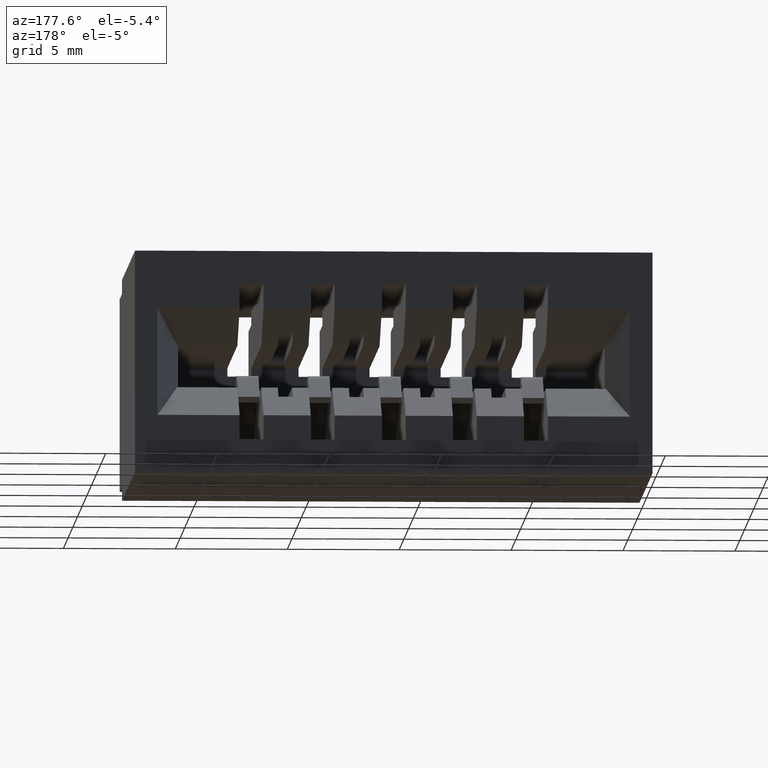
[diagram: clean part render]
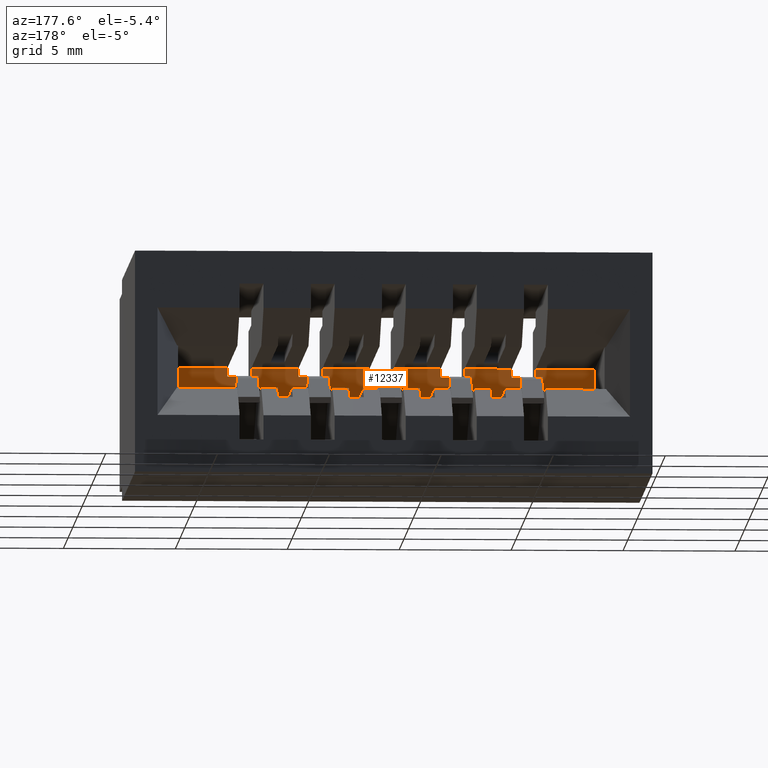
[diagram: same view with one face highlighted and labeled with its STEP entity id]
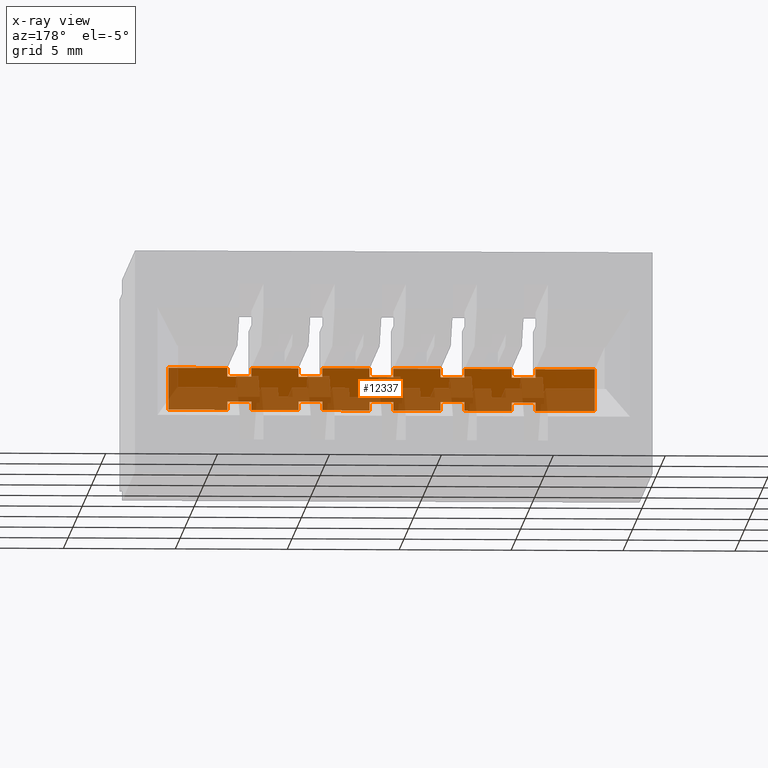
[diagram: x-ray of the same camera — body ghosted, the highlighted face saturated]
A machine part, auxiliary view. The second image highlights one B-rep face of the part: STEP entity #12337.
The next image is the same camera in x-ray: the body ghosted, the highlighted face saturated — about 61% of this face is hidden behind the body in this view.
In plain terms, the highlighted planar face has unit normal (0, -1, 0).
Its self-contained STEP definition (entity closure, byte-faithful):
#218 = CARTESIAN_POINT ( 'NONE',  ( 0.2259999999999996179, 0.1299999999999999212, -0.2320000000000000118 ) ) ;
#256 = DIRECTION ( 'NONE',  ( -1.000000000000000000, -0.0000000000000000000, -0.0000000000000000000 ) ) ;
#311 = VECTOR ( 'NONE', #1672, 39.37007874015748143 ) ;
#340 = DIRECTION ( 'NONE',  ( 1.000000000000000000, 0.0000000000000000000, -2.307304048702924629E-16 ) ) ;
#350 = CARTESIAN_POINT ( 'NONE',  ( 0.4759999999999995901, 0.1299999999999999212, -0.1580000000000000848 ) ) ;
#466 = EDGE_CURVE ( 'NONE', #9126, #5496, #10151, .T. ) ;
#478 = DIRECTION ( 'NONE',  ( 2.385081683068867604E-16, 0.0000000000000000000, 1.000000000000000000 ) ) ;
#524 = DIRECTION ( 'NONE',  ( 1.000000000000000000, 0.0000000000000000000, -2.307304048702924629E-16 ) ) ;
#558 = VECTOR ( 'NONE', #6745, 39.37007874015748143 ) ;
#578 = CARTESIAN_POINT ( 'NONE',  ( 0.07999999999999969635, 0.1299999999999999212, -0.2320000000000000118 ) ) ;
#590 = VERTEX_POINT ( 'NONE', #8747 ) ;
#649 = CARTESIAN_POINT ( 'NONE',  ( 0.3509999999999995901, 0.1299999999999999212, -0.2169999999999998597 ) ) ;
#656 = ORIENTED_EDGE ( 'NONE', *, *, #8857, .F. ) ;
#655 = VERTEX_POINT ( 'NONE', #1410 ) ;
#669 = EDGE_CURVE ( 'NONE', #3289, #2224, #2326, .T. ) ;
#682 = ORIENTED_EDGE ( 'NONE', *, *, #6708, .F. ) ;
#690 = VECTOR ( 'NONE', #11355, 39.37007874015748143 ) ;
#732 = VECTOR ( 'NONE', #11087, 39.37007874015748143 ) ;
#737 = DIRECTION ( 'NONE',  ( 1.000000000000000000, -0.0000000000000000000, -0.0000000000000000000 ) ) ;
#750 = VECTOR ( 'NONE', #737, 39.37007874015748143 ) ;
#795 = DIRECTION ( 'NONE',  ( 2.385081683068867604E-16, 0.0000000000000000000, 1.000000000000000000 ) ) ;
#821 = VECTOR ( 'NONE', #11746, 39.37007874015748143 ) ;
#892 = CARTESIAN_POINT ( 'NONE',  ( 0.2259999999999996456, 0.1299999999999999212, -0.1580000000000000016 ) ) ;
#900 = CARTESIAN_POINT ( 'NONE',  ( 0.07999999999999969635, 0.1299999999999999212, -0.2320000000000000118 ) ) ;
#948 = DIRECTION ( 'NONE',  ( 1.000000000000000000, 0.0000000000000000000, -2.307304048702924629E-16 ) ) ;
#974 = CARTESIAN_POINT ( 'NONE',  ( -19685.03937007874265, 0.1299999999999999212, -0.1729999999954578704 ) ) ;
#995 = CARTESIAN_POINT ( 'NONE',  ( 0.6009999999999996456, 0.1299999999999999212, -0.1580000000000000016 ) ) ;
#999 = VERTEX_POINT ( 'NONE', #11892 ) ;
#1008 = LINE ( 'NONE', #3873, #7876 ) ;
#1098 = DIRECTION ( 'NONE',  ( -1.000000000000000000, -0.0000000000000000000, -0.0000000000000000000 ) ) ;
#1101 = ORIENTED_EDGE ( 'NONE', *, *, #5701, .T. ) ;
#1108 = VECTOR ( 'NONE', #8491, 39.37007874015748143 ) ;
#1167 = VERTEX_POINT ( 'NONE', #7502 ) ;
#1225 = VERTEX_POINT ( 'NONE', #2504 ) ;
#1276 = VERTEX_POINT ( 'NONE', #8468 ) ;
#1295 = EDGE_CURVE ( 'NONE', #8903, #5496, #9813, .T. ) ;
#1354 = VECTOR ( 'NONE', #6376, 39.37007874015748143 ) ;
#1366 = CARTESIAN_POINT ( 'NONE',  ( 0.07999999999999969635, 0.1299999999999999212, -0.2320000000000000118 ) ) ;
#1387 = VERTEX_POINT ( 'NONE', #7166 ) ;
#1410 = CARTESIAN_POINT ( 'NONE',  ( 0.7259999999999997566, 0.1299999999999999212, -0.2320000000000000118 ) ) ;
#1426 = VECTOR ( 'NONE', #3009, 39.37007874015748143 ) ;
#1456 = VECTOR ( 'NONE', #5358, 39.37007874015748143 ) ;
#1484 = EDGE_CURVE ( 'NONE', #7288, #5672, #10137, .T. ) ;
#1587 = CARTESIAN_POINT ( 'NONE',  ( 0.4759999999999995901, 0.1299999999999999212, -0.1580000000000000848 ) ) ;
#1647 = ORIENTED_EDGE ( 'NONE', *, *, #466, .T. ) ;
#1655 = CARTESIAN_POINT ( 'NONE',  ( 0.8299999999999996270, 0.1299999999999999212, -0.1580000000000000016 ) ) ;
#1672 = DIRECTION ( 'NONE',  ( 1.000000000000000000, 0.0000000000000000000, -2.307304048702924629E-16 ) ) ;
#1703 = CARTESIAN_POINT ( 'NONE',  ( 0.8299999999999996270, 0.1299999999999999212, -0.1580000000000000016 ) ) ;
#1709 = ORIENTED_EDGE ( 'NONE', *, *, #9819, .T. ) ;
#1818 = VERTEX_POINT ( 'NONE', #5974 ) ;
#2037 = LINE ( 'NONE', #8975, #8885 ) ;
#2095 = ORIENTED_EDGE ( 'NONE', *, *, #11348, .T. ) ;
#2192 = ORIENTED_EDGE ( 'NONE', *, *, #3627, .F. ) ;
#2224 = VERTEX_POINT ( 'NONE', #6158 ) ;
#2236 = VERTEX_POINT ( 'NONE', #4210 ) ;
#2239 = CARTESIAN_POINT ( 'NONE',  ( 0.3089999999999996083, 0.1299999999999999212, -0.1580000000000000571 ) ) ;
#2293 = VERTEX_POINT ( 'NONE', #10173 ) ;
#2302 = CARTESIAN_POINT ( 'NONE',  ( 0.5589999999999996083, 0.1299999999999999212, -0.1729999999999995708 ) ) ;
#2310 = DIRECTION ( 'NONE',  ( 1.000000000000000000, -0.0000000000000000000, -0.0000000000000000000 ) ) ;
#2326 = LINE ( 'NONE', #974, #12406 ) ;
#2343 = VECTOR ( 'NONE', #2898, 39.37007874015748143 ) ;
#2357 = CARTESIAN_POINT ( 'NONE',  ( 0.07999999999999969635, 0.1299999999999999212, -0.1580000000000000016 ) ) ;
#2372 = DIRECTION ( 'NONE',  ( 2.385081683068867604E-16, 0.0000000000000000000, 1.000000000000000000 ) ) ;
#2374 = LINE ( 'NONE', #3284, #12465 ) ;
#2377 = VECTOR ( 'NONE', #7117, 39.37007874015748143 ) ;
#2442 = CARTESIAN_POINT ( 'NONE',  ( 0.1839999999999996638, 0.1299999999999999212, -0.1580000000000000293 ) ) ;
#2473 = LINE ( 'NONE', #1366, #3519 ) ;
#2480 = EDGE_CURVE ( 'NONE', #1225, #8413, #2037, .T. ) ;
#2504 = CARTESIAN_POINT ( 'NONE',  ( 0.5589999999999996083, 0.1299999999999999212, -0.2320000000000000118 ) ) ;
#2553 = CARTESIAN_POINT ( 'NONE',  ( 0.6839999999999996083, 0.1299999999999999212, -0.2169999999999998597 ) ) ;
#2574 = ORIENTED_EDGE ( 'NONE', *, *, #4730, .T. ) ;
#2600 = DIRECTION ( 'NONE',  ( 0.0000000000000000000, -1.000000000000000000, -0.0000000000000000000 ) ) ;
#2615 = EDGE_CURVE ( 'NONE', #7463, #6164, #7492, .T. ) ;
#2628 = LINE ( 'NONE', #1587, #10432 ) ;
#2744 = LINE ( 'NONE', #6766, #8066 ) ;
#2768 = LINE ( 'NONE', #11642, #311 ) ;
#2800 = LINE ( 'NONE', #1703, #10286 ) ;
#2878 = CARTESIAN_POINT ( 'NONE',  ( 0.3089999999999996083, 0.1299999999999999212, -0.1580000000000000571 ) ) ;
#2898 = DIRECTION ( 'NONE',  ( 2.385081683068867604E-16, 0.0000000000000000000, 1.000000000000000000 ) ) ;
#2936 = DIRECTION ( 'NONE',  ( 2.385081683068867604E-16, 0.0000000000000000000, 1.000000000000000000 ) ) ;
#2952 = ORIENTED_EDGE ( 'NONE', *, *, #669, .T. ) ;
#3009 = DIRECTION ( 'NONE',  ( 2.385081683068867604E-16, 0.0000000000000000000, 1.000000000000000000 ) ) ;
#3029 = VECTOR ( 'NONE', #10003, 39.37007874015748143 ) ;
#3095 = VECTOR ( 'NONE', #3448, 39.37007874015748143 ) ;
#3226 = EDGE_CURVE ( 'NONE', #1167, #11414, #7003, .T. ) ;
#3250 = VECTOR ( 'NONE', #10893, 39.37007874015748143 ) ;
#3270 = CARTESIAN_POINT ( 'NONE',  ( 0.5589999999999997193, 0.1299999999999999212, -0.1580000000000000016 ) ) ;
#3277 = ORIENTED_EDGE ( 'NONE', *, *, #1484, .T. ) ;
#3284 = CARTESIAN_POINT ( 'NONE',  ( -19685.03937007874265, 0.1299999999999999212, -0.1729999999954578427 ) ) ;
#3289 = VERTEX_POINT ( 'NONE', #10431 ) ;
#3359 = EDGE_CURVE ( 'NONE', #2293, #4426, #7524, .T. ) ;
#3377 = DIRECTION ( 'NONE',  ( -1.000000000000000000, -0.0000000000000000000, -0.0000000000000000000 ) ) ;
#3391 = ORIENTED_EDGE ( 'NONE', *, *, #2480, .F. ) ;
#3421 = VERTEX_POINT ( 'NONE', #5821 ) ;
#3448 = DIRECTION ( 'NONE',  ( 1.000000000000000000, 0.0000000000000000000, -2.307304048702924629E-16 ) ) ;
#3451 = LINE ( 'NONE', #6437, #7865 ) ;
#3472 = LINE ( 'NONE', #2239, #7874 ) ;
#3512 = DIRECTION ( 'NONE',  ( 2.385081683068867604E-16, 0.0000000000000000000, 1.000000000000000000 ) ) ;
#3519 = VECTOR ( 'NONE', #4356, 39.37007874015748143 ) ;
#3557 = CARTESIAN_POINT ( 'NONE',  ( 0.5589999999999996083, 0.1299999999999999212, -0.1580000000000000848 ) ) ;
#3627 = EDGE_CURVE ( 'NONE', #12042, #2236, #10925, .T. ) ;
#3670 = CARTESIAN_POINT ( 'NONE',  ( 0.1839999999999997193, 0.1299999999999999212, -0.1580000000000000016 ) ) ;
#3790 = LINE ( 'NONE', #1655, #750 ) ;
#3809 = CARTESIAN_POINT ( 'NONE',  ( 0.6009999999999996456, 0.1299999999999999212, -0.2169999999999998597 ) ) ;
#3816 = VERTEX_POINT ( 'NONE', #3670 ) ;
#3832 = ORIENTED_EDGE ( 'NONE', *, *, #7811, .F. ) ;
#3867 = DIRECTION ( 'NONE',  ( 1.000000000000000000, 0.0000000000000000000, -2.307304048702924629E-16 ) ) ;
#3873 = CARTESIAN_POINT ( 'NONE',  ( 0.3509999999999995901, 0.1299999999999999212, -0.1580000000000000571 ) ) ;
#3923 = VECTOR ( 'NONE', #6195, 39.37007874015748143 ) ;
#3960 = VERTEX_POINT ( 'NONE', #995 ) ;
#3978 = CARTESIAN_POINT ( 'NONE',  ( 0.3089999999999996083, 0.1299999999999999212, -0.1729999999999995708 ) ) ;
#3981 = DIRECTION ( 'NONE',  ( 2.385081683068867604E-16, 0.0000000000000000000, 1.000000000000000000 ) ) ;
#3986 = CARTESIAN_POINT ( 'NONE',  ( 0.8299999999999996270, 0.1299999999999999212, -0.2320000000000000118 ) ) ;
#4002 = CARTESIAN_POINT ( 'NONE',  ( -19685.03937007874265, 0.1299999999999999212, -0.2169999999954578818 ) ) ;
#4024 = VERTEX_POINT ( 'NONE', #3986 ) ;
#4029 = VECTOR ( 'NONE', #3512, 39.37007874015748143 ) ;
#4108 = EDGE_CURVE ( 'NONE', #9319, #6372, #12073, .T. ) ;
#4162 = CARTESIAN_POINT ( 'NONE',  ( 0.2259999999999996456, 0.1299999999999999212, -0.1580000000000000293 ) ) ;
#4210 = CARTESIAN_POINT ( 'NONE',  ( 0.2259999999999996456, 0.1299999999999999212, -0.2169999999999997486 ) ) ;
#4263 = ORIENTED_EDGE ( 'NONE', *, *, #8545, .F. ) ;
#4285 = CARTESIAN_POINT ( 'NONE',  ( 0.3509999999999995901, 0.1299999999999999212, -0.2320000000000000118 ) ) ;
#4299 = LINE ( 'NONE', #11160, #1354 ) ;
#4356 = DIRECTION ( 'NONE',  ( -1.000000000000000000, -0.0000000000000000000, -0.0000000000000000000 ) ) ;
#4422 = LINE ( 'NONE', #8378, #3095 ) ;
#4426 = VERTEX_POINT ( 'NONE', #9766 ) ;
#4498 = LINE ( 'NONE', #12622, #12201 ) ;
#4500 = LINE ( 'NONE', #2357, #8419 ) ;
#4628 = CARTESIAN_POINT ( 'NONE',  ( 0.4759999999999995901, 0.1299999999999999212, -0.1729999999999995708 ) ) ;
#4685 = ORIENTED_EDGE ( 'NONE', *, *, #11485, .T. ) ;
#4730 = EDGE_CURVE ( 'NONE', #1387, #5292, #2628, .T. ) ;
#4765 = LINE ( 'NONE', #7883, #11661 ) ;
#4796 = CARTESIAN_POINT ( 'NONE',  ( 0.6839999999999997193, 0.1299999999999999212, -0.1580000000000000016 ) ) ;
#4797 = DIRECTION ( 'NONE',  ( 2.385081683068867604E-16, 0.0000000000000000000, 1.000000000000000000 ) ) ;
#4822 = CARTESIAN_POINT ( 'NONE',  ( -19685.03937007874265, 0.1299999999999999212, -0.2169999999954577707 ) ) ;
#4861 = EDGE_CURVE ( 'NONE', #12723, #5643, #4765, .T. ) ;
#4900 = ORIENTED_EDGE ( 'NONE', *, *, #12469, .F. ) ;
#4912 = VECTOR ( 'NONE', #3377, 39.37007874015748143 ) ;
#5176 = ORIENTED_EDGE ( 'NONE', *, *, #10910, .T. ) ;
#5197 = LINE ( 'NONE', #9143, #9669 ) ;
#5200 = LINE ( 'NONE', #4162, #732 ) ;
#5256 = ORIENTED_EDGE ( 'NONE', *, *, #9146, .F. ) ;
#5292 = VERTEX_POINT ( 'NONE', #8171 ) ;
#5358 = DIRECTION ( 'NONE',  ( 2.385081683068867604E-16, 0.0000000000000000000, 1.000000000000000000 ) ) ;
#5379 = VECTOR ( 'NONE', #3867, 39.37007874015748143 ) ;
#5496 = VERTEX_POINT ( 'NONE', #9454 ) ;
#5501 = DIRECTION ( 'NONE',  ( 2.385081683068867604E-16, 0.0000000000000000000, 1.000000000000000000 ) ) ;
#5518 = PLANE ( 'NONE',  #6156 ) ;
#5622 = VERTEX_POINT ( 'NONE', #7839 ) ;
#5643 = VERTEX_POINT ( 'NONE', #3809 ) ;
#5659 = ORIENTED_EDGE ( 'NONE', *, *, #3226, .T. ) ;
#5670 = EDGE_CURVE ( 'NONE', #655, #10981, #6985, .T. ) ;
#5672 = VERTEX_POINT ( 'NONE', #8026 ) ;
#5701 = EDGE_CURVE ( 'NONE', #8903, #9335, #2374, .T. ) ;
#5821 = CARTESIAN_POINT ( 'NONE',  ( 0.4339999999999996083, 0.1299999999999999212, -0.1729999999999995708 ) ) ;
#5903 = ORIENTED_EDGE ( 'NONE', *, *, #11011, .F. ) ;
#5962 = CARTESIAN_POINT ( 'NONE',  ( 0.07999999999999969635, 0.1299999999999999212, -0.2320000000000000118 ) ) ;
#5974 = CARTESIAN_POINT ( 'NONE',  ( 0.8299999999999996270, 0.1299999999999999212, -0.1580000000000000016 ) ) ;
#6075 = LINE ( 'NONE', #10924, #11983 ) ;
#6108 = EDGE_CURVE ( 'NONE', #11127, #12490, #10663, .T. ) ;
#6156 = AXIS2_PLACEMENT_3D ( 'NONE', #9402, #2600, #8499 ) ;
#6158 = CARTESIAN_POINT ( 'NONE',  ( 0.2259999999999996456, 0.1299999999999999212, -0.1729999999999998483 ) ) ;
#6164 = VERTEX_POINT ( 'NONE', #3270 ) ;
#6195 = DIRECTION ( 'NONE',  ( 1.000000000000000000, -0.0000000000000000000, -0.0000000000000000000 ) ) ;
#6282 = DIRECTION ( 'NONE',  ( 1.000000000000000000, 0.0000000000000000000, -2.307304048702924629E-16 ) ) ;
#6316 = DIRECTION ( 'NONE',  ( -0.0000000000000000000, -0.0000000000000000000, 1.000000000000000000 ) ) ;
#6352 = CARTESIAN_POINT ( 'NONE',  ( 0.7259999999999997566, 0.1299999999999999212, -0.1580000000000001681 ) ) ;
#6372 = VERTEX_POINT ( 'NONE', #2553 ) ;
#6376 = DIRECTION ( 'NONE',  ( 1.000000000000000000, -0.0000000000000000000, -0.0000000000000000000 ) ) ;
#6380 = CARTESIAN_POINT ( 'NONE',  ( 0.8299999999999996270, 0.1299999999999999212, -0.1580000000000000016 ) ) ;
#6392 = LINE ( 'NONE', #12334, #11297 ) ;
#6398 = ORIENTED_EDGE ( 'NONE', *, *, #2615, .T. ) ;
#6437 = CARTESIAN_POINT ( 'NONE',  ( -19685.03937007874265, 0.1299999999999999212, -0.2169999999954578263 ) ) ;
#6630 = EDGE_CURVE ( 'NONE', #1225, #1387, #2473, .T. ) ;
#6708 = EDGE_CURVE ( 'NONE', #8413, #5643, #4422, .T. ) ;
#6745 = DIRECTION ( 'NONE',  ( 2.385081683068867604E-16, 0.0000000000000000000, 1.000000000000000000 ) ) ;
#6762 = DIRECTION ( 'NONE',  ( 0.0000000000000000000, 0.0000000000000000000, -1.000000000000000000 ) ) ;
#6766 = CARTESIAN_POINT ( 'NONE',  ( 0.3509999999999995901, 0.1299999999999999212, -0.1580000000000000571 ) ) ;
#6855 = EDGE_CURVE ( 'NONE', #10671, #7782, #1008, .T. ) ;
#6878 = EDGE_CURVE ( 'NONE', #3421, #7512, #6075, .T. ) ;
#6918 = LINE ( 'NONE', #9053, #5379 ) ;
#6974 = EDGE_CURVE ( 'NONE', #3289, #3816, #7376, .T. ) ;
#6985 = LINE ( 'NONE', #7774, #2343 ) ;
#6999 = CARTESIAN_POINT ( 'NONE',  ( 0.7259999999999997566, 0.1299999999999999212, -0.2169999999999998597 ) ) ;
#7003 = LINE ( 'NONE', #5962, #7328 ) ;
#7040 = DIRECTION ( 'NONE',  ( 2.385081683068867604E-16, 0.0000000000000000000, 1.000000000000000000 ) ) ;
#7117 = DIRECTION ( 'NONE',  ( 2.385081683068867604E-16, 0.0000000000000000000, 1.000000000000000000 ) ) ;
#7124 = EDGE_CURVE ( 'NONE', #11414, #2236, #10849, .T. ) ;
#7129 = ORIENTED_EDGE ( 'NONE', *, *, #12672, .F. ) ;
#7166 = CARTESIAN_POINT ( 'NONE',  ( 0.4759999999999995901, 0.1299999999999999212, -0.2320000000000000118 ) ) ;
#7173 = CARTESIAN_POINT ( 'NONE',  ( 0.6839999999999996083, 0.1299999999999999212, -0.1580000000000001403 ) ) ;
#7176 = CARTESIAN_POINT ( 'NONE',  ( 0.8299999999999996270, 0.1299999999999999212, -0.1580000000000000016 ) ) ;
#7266 = VECTOR ( 'NONE', #3981, 39.37007874015748143 ) ;
#7288 = VERTEX_POINT ( 'NONE', #2302 ) ;
#7305 = CARTESIAN_POINT ( 'NONE',  ( 0.6839999999999996083, 0.1299999999999999212, -0.1729999999999995708 ) ) ;
#7328 = VECTOR ( 'NONE', #1098, 39.37007874015748143 ) ;
#7376 = LINE ( 'NONE', #2442, #1456 ) ;
#7453 = CARTESIAN_POINT ( 'NONE',  ( 0.3089999999999996083, 0.1299999999999999212, -0.2169999999999998597 ) ) ;
#7463 = VERTEX_POINT ( 'NONE', #8521 ) ;
#7469 = ORIENTED_EDGE ( 'NONE', *, *, #10575, .T. ) ;
#7492 = LINE ( 'NONE', #6380, #690 ) ;
#7502 = CARTESIAN_POINT ( 'NONE',  ( 0.3089999999999996083, 0.1299999999999999212, -0.2320000000000000118 ) ) ;
#7512 = VERTEX_POINT ( 'NONE', #4628 ) ;
#7524 = LINE ( 'NONE', #6352, #1108 ) ;
#7671 = EDGE_CURVE ( 'NONE', #9335, #9349, #2744, .T. ) ;
#7722 = CARTESIAN_POINT ( 'NONE',  ( 0.4339999999999996083, 0.1299999999999999212, -0.1580000000000000571 ) ) ;
#7762 = ORIENTED_EDGE ( 'NONE', *, *, #1295, .F. ) ;
#7774 = CARTESIAN_POINT ( 'NONE',  ( 0.7259999999999997566, 0.1299999999999999212, -0.1580000000000001681 ) ) ;
#7782 = VERTEX_POINT ( 'NONE', #649 ) ;
#7811 = EDGE_CURVE ( 'NONE', #12125, #5292, #3451, .T. ) ;
#7839 = CARTESIAN_POINT ( 'NONE',  ( 0.4339999999999996083, 0.1299999999999999212, -0.1580000000000000016 ) ) ;
#7865 = VECTOR ( 'NONE', #524, 39.37007874015748143 ) ;
#7874 = VECTOR ( 'NONE', #478, 39.37007874015748143 ) ;
#7876 = VECTOR ( 'NONE', #9833, 39.37007874015748143 ) ;
#7883 = CARTESIAN_POINT ( 'NONE',  ( 0.6009999999999996456, 0.1299999999999999212, -0.1580000000000001403 ) ) ;
#7897 = CARTESIAN_POINT ( 'NONE',  ( 0.5589999999999996083, 0.1299999999999999212, -0.2169999999999998597 ) ) ;
#7932 = CARTESIAN_POINT ( 'NONE',  ( 0.07999999999999969635, 0.1299999999999999212, -0.2320000000000000118 ) ) ;
#7946 = CARTESIAN_POINT ( 'NONE',  ( 0.2259999999999996456, 0.1299999999999999212, -0.1580000000000000293 ) ) ;
#7950 = VERTEX_POINT ( 'NONE', #900 ) ;
#8026 = CARTESIAN_POINT ( 'NONE',  ( 0.6009999999999996456, 0.1299999999999999212, -0.1729999999999995708 ) ) ;
#8047 = ORIENTED_EDGE ( 'NONE', *, *, #6855, .T. ) ;
#8066 = VECTOR ( 'NONE', #2936, 39.37007874015748143 ) ;
#8171 = CARTESIAN_POINT ( 'NONE',  ( 0.4759999999999995901, 0.1299999999999999212, -0.2169999999999998597 ) ) ;
#8212 = ORIENTED_EDGE ( 'NONE', *, *, #4861, .T. ) ;
#8220 = DIRECTION ( 'NONE',  ( 1.000000000000000000, 0.0000000000000000000, -2.307304048702924629E-16 ) ) ;
#8304 = ORIENTED_EDGE ( 'NONE', *, *, #9888, .T. ) ;
#8378 = CARTESIAN_POINT ( 'NONE',  ( -19685.03937007874265, 0.1299999999999999212, -0.2169999999954577985 ) ) ;
#8397 = EDGE_CURVE ( 'NONE', #11127, #2293, #6918, .T. ) ;
#8404 = LINE ( 'NONE', #350, #11267 ) ;
#8413 = VERTEX_POINT ( 'NONE', #7897 ) ;
#8419 = VECTOR ( 'NONE', #6316, 39.37007874015748143 ) ;
#8446 = ORIENTED_EDGE ( 'NONE', *, *, #6108, .F. ) ;
#8468 = CARTESIAN_POINT ( 'NONE',  ( 0.07999999999999969635, 0.1299999999999999212, -0.1580000000000000016 ) ) ;
#8491 = DIRECTION ( 'NONE',  ( 2.385081683068867604E-16, 0.0000000000000000000, 1.000000000000000000 ) ) ;
#8499 = DIRECTION ( 'NONE',  ( 0.0000000000000000000, 0.0000000000000000000, -1.000000000000000000 ) ) ;
#8521 = CARTESIAN_POINT ( 'NONE',  ( 0.4759999999999995901, 0.1299999999999999212, -0.1580000000000000016 ) ) ;
#8537 = ORIENTED_EDGE ( 'NONE', *, *, #3359, .T. ) ;
#8545 = EDGE_CURVE ( 'NONE', #1167, #12677, #3472, .T. ) ;
#8603 = ORIENTED_EDGE ( 'NONE', *, *, #7124, .T. ) ;
#8747 = CARTESIAN_POINT ( 'NONE',  ( 0.4339999999999996083, 0.1299999999999999212, -0.2320000000000000118 ) ) ;
#8805 = DIRECTION ( 'NONE',  ( 1.000000000000000000, 0.0000000000000000000, -2.307304048702924629E-16 ) ) ;
#8820 = VECTOR ( 'NONE', #9720, 39.37007874015748143 ) ;
#8857 = EDGE_CURVE ( 'NONE', #6372, #10981, #10842, .T. ) ;
#8885 = VECTOR ( 'NONE', #11458, 39.37007874015748143 ) ;
#8903 = VERTEX_POINT ( 'NONE', #3978 ) ;
#8942 = CARTESIAN_POINT ( 'NONE',  ( 0.3509999999999995901, 0.1299999999999999212, -0.1580000000000000016 ) ) ;
#8954 = CARTESIAN_POINT ( 'NONE',  ( 0.4339999999999996083, 0.1299999999999999212, -0.2169999999999998597 ) ) ;
#8975 = CARTESIAN_POINT ( 'NONE',  ( 0.5589999999999996083, 0.1299999999999999212, -0.1580000000000000848 ) ) ;
#8999 = ORIENTED_EDGE ( 'NONE', *, *, #4108, .F. ) ;
#9053 = CARTESIAN_POINT ( 'NONE',  ( -19685.03937007874265, 0.1299999999999999212, -0.1729999999954577317 ) ) ;
#9055 = LINE ( 'NONE', #10019, #2377 ) ;
#9126 = VERTEX_POINT ( 'NONE', #892 ) ;
#9143 = CARTESIAN_POINT ( 'NONE',  ( 0.07999999999999969635, 0.1299999999999999212, -0.2320000000000000118 ) ) ;
#9146 = EDGE_CURVE ( 'NONE', #999, #12042, #4498, .T. ) ;
#9250 = ORIENTED_EDGE ( 'NONE', *, *, #11190, .T. ) ;
#9319 = VERTEX_POINT ( 'NONE', #12810 ) ;
#9324 = CARTESIAN_POINT ( 'NONE',  ( 0.6009999999999996456, 0.1299999999999999212, -0.2320000000000000118 ) ) ;
#9331 = VECTOR ( 'NONE', #7040, 39.37007874015748143 ) ;
#9335 = VERTEX_POINT ( 'NONE', #10875 ) ;
#9349 = VERTEX_POINT ( 'NONE', #8942 ) ;
#9401 = ORIENTED_EDGE ( 'NONE', *, *, #11719, .T. ) ;
#9402 = CARTESIAN_POINT ( 'NONE',  ( 0.07999999999999969635, 0.1299999999999999212, -0.1580000000000000016 ) ) ;
#9454 = CARTESIAN_POINT ( 'NONE',  ( 0.3089999999999996083, 0.1299999999999999212, -0.1580000000000000016 ) ) ;
#9465 = LINE ( 'NONE', #578, #4912 ) ;
#9538 = EDGE_CURVE ( 'NONE', #12677, #7782, #2768, .T. ) ;
#9603 = ORIENTED_EDGE ( 'NONE', *, *, #12236, .T. ) ;
#9669 = VECTOR ( 'NONE', #256, 39.37007874015748143 ) ;
#9720 = DIRECTION ( 'NONE',  ( 1.000000000000000000, -0.0000000000000000000, -0.0000000000000000000 ) ) ;
#9747 = EDGE_CURVE ( 'NONE', #5672, #3960, #9055, .T. ) ;
#9766 = CARTESIAN_POINT ( 'NONE',  ( 0.7259999999999997566, 0.1299999999999999212, -0.1580000000000000016 ) ) ;
#9782 = LINE ( 'NONE', #11847, #8820 ) ;
#9813 = LINE ( 'NONE', #2878, #7266 ) ;
#9819 = EDGE_CURVE ( 'NONE', #7512, #7463, #8404, .T. ) ;
#9833 = DIRECTION ( 'NONE',  ( 2.385081683068867604E-16, 0.0000000000000000000, 1.000000000000000000 ) ) ;
#9850 = ORIENTED_EDGE ( 'NONE', *, *, #11684, .T. ) ;
#9876 = LINE ( 'NONE', #9940, #3029 ) ;
#9888 = EDGE_CURVE ( 'NONE', #9349, #5622, #11238, .T. ) ;
#9910 = ORIENTED_EDGE ( 'NONE', *, *, #8397, .T. ) ;
#9940 = CARTESIAN_POINT ( 'NONE',  ( 0.07999999999999969635, 0.1299999999999999212, -0.2320000000000000118 ) ) ;
#10003 = DIRECTION ( 'NONE',  ( -1.000000000000000000, -0.0000000000000000000, -0.0000000000000000000 ) ) ;
#10019 = CARTESIAN_POINT ( 'NONE',  ( 0.6009999999999996456, 0.1299999999999999212, -0.1580000000000001403 ) ) ;
#10030 = ORIENTED_EDGE ( 'NONE', *, *, #6974, .F. ) ;
#10137 = LINE ( 'NONE', #10908, #10969 ) ;
#10151 = LINE ( 'NONE', #7176, #3923 ) ;
#10173 = CARTESIAN_POINT ( 'NONE',  ( 0.7259999999999997566, 0.1299999999999999212, -0.1729999999999995708 ) ) ;
#10240 = VECTOR ( 'NONE', #2310, 39.37007874015748143 ) ;
#10244 = EDGE_CURVE ( 'NONE', #1276, #3816, #4299, .T. ) ;
#10286 = VECTOR ( 'NONE', #6762, 39.37007874015748143 ) ;
#10431 = CARTESIAN_POINT ( 'NONE',  ( 0.1839999999995913238, 0.1299999999999999212, -0.1729999999999998483 ) ) ;
#10432 = VECTOR ( 'NONE', #10532, 39.37007874015748143 ) ;
#10532 = DIRECTION ( 'NONE',  ( 2.385081683068867604E-16, 0.0000000000000000000, 1.000000000000000000 ) ) ;
#10575 = EDGE_CURVE ( 'NONE', #2224, #9126, #5200, .T. ) ;
#10637 = EDGE_LOOP ( 'NONE', ( #9401, #11666, #656, #8999, #2095, #8212, #682, #3391, #12616, #2574, #3832, #4900, #9603, #8047, #12694, #4263, #5659, #8603, #2192, #5256, #11796, #4685, #11524, #10030, #2952, #7469, #1647, #7762, #1101, #10916, #8304, #5903, #12787, #1709, #6398, #7129, #3277, #11081, #5176, #8446, #9910, #8537, #9250, #9850 ) ) ;
#10642 = CARTESIAN_POINT ( 'NONE',  ( 0.1839999999995913238, 0.1299999999999999212, -0.2169999999999998597 ) ) ;
#10663 = LINE ( 'NONE', #10785, #1426 ) ;
#10671 = VERTEX_POINT ( 'NONE', #4285 ) ;
#10785 = CARTESIAN_POINT ( 'NONE',  ( 0.6839999999999996083, 0.1299999999999999212, -0.1580000000000001403 ) ) ;
#10842 = LINE ( 'NONE', #4822, #821 ) ;
#10849 = LINE ( 'NONE', #7946, #9331 ) ;
#10875 = CARTESIAN_POINT ( 'NONE',  ( 0.3509999999999995901, 0.1299999999999999212, -0.1729999999999995708 ) ) ;
#10893 = DIRECTION ( 'NONE',  ( -1.000000000000000000, -0.0000000000000000000, -0.0000000000000000000 ) ) ;
#10908 = CARTESIAN_POINT ( 'NONE',  ( -19685.03937007874265, 0.1299999999999999212, -0.1729999999954577594 ) ) ;
#10910 = EDGE_CURVE ( 'NONE', #3960, #12490, #9782, .T. ) ;
#10916 = ORIENTED_EDGE ( 'NONE', *, *, #7671, .T. ) ;
#10924 = CARTESIAN_POINT ( 'NONE',  ( -19685.03937007874265, 0.1299999999999999212, -0.1729999999954577872 ) ) ;
#10925 = LINE ( 'NONE', #4002, #11251 ) ;
#10969 = VECTOR ( 'NONE', #340, 39.37007874015748143 ) ;
#10981 = VERTEX_POINT ( 'NONE', #6999 ) ;
#11011 = EDGE_CURVE ( 'NONE', #3421, #5622, #6392, .T. ) ;
#11081 = ORIENTED_EDGE ( 'NONE', *, *, #9747, .T. ) ;
#11087 = DIRECTION ( 'NONE',  ( 2.385081683068867604E-16, 0.0000000000000000000, 1.000000000000000000 ) ) ;
#11127 = VERTEX_POINT ( 'NONE', #7305 ) ;
#11160 = CARTESIAN_POINT ( 'NONE',  ( 0.8299999999999996270, 0.1299999999999999212, -0.1580000000000000016 ) ) ;
#11178 = CARTESIAN_POINT ( 'NONE',  ( 0.8299999999999996270, 0.1299999999999999212, -0.1580000000000000016 ) ) ;
#11190 = EDGE_CURVE ( 'NONE', #4426, #1818, #3790, .T. ) ;
#11238 = LINE ( 'NONE', #11178, #10240 ) ;
#11251 = VECTOR ( 'NONE', #948, 39.37007874015748143 ) ;
#11267 = VECTOR ( 'NONE', #12083, 39.37007874015748143 ) ;
#11297 = VECTOR ( 'NONE', #2372, 39.37007874015748143 ) ;
#11319 = LINE ( 'NONE', #3557, #12355 ) ;
#11348 = EDGE_CURVE ( 'NONE', #9319, #12723, #9876, .T. ) ;
#11355 = DIRECTION ( 'NONE',  ( 1.000000000000000000, -0.0000000000000000000, -0.0000000000000000000 ) ) ;
#11405 = FACE_OUTER_BOUND ( 'NONE', #10637, .T. ) ;
#11414 = VERTEX_POINT ( 'NONE', #218 ) ;
#11458 = DIRECTION ( 'NONE',  ( 2.385081683068867604E-16, 0.0000000000000000000, 1.000000000000000000 ) ) ;
#11485 = EDGE_CURVE ( 'NONE', #7950, #1276, #4500, .T. ) ;
#11524 = ORIENTED_EDGE ( 'NONE', *, *, #10244, .T. ) ;
#11642 = CARTESIAN_POINT ( 'NONE',  ( -19685.03937007874265, 0.1299999999999999212, -0.2169999999954578540 ) ) ;
#11661 = VECTOR ( 'NONE', #795, 39.37007874015748143 ) ;
#11666 = ORIENTED_EDGE ( 'NONE', *, *, #5670, .T. ) ;
#11684 = EDGE_CURVE ( 'NONE', #1818, #4024, #2800, .T. ) ;
#11719 = EDGE_CURVE ( 'NONE', #4024, #655, #11923, .T. ) ;
#11746 = DIRECTION ( 'NONE',  ( 1.000000000000000000, 0.0000000000000000000, -2.307304048702924629E-16 ) ) ;
#11796 = ORIENTED_EDGE ( 'NONE', *, *, #12354, .T. ) ;
#11847 = CARTESIAN_POINT ( 'NONE',  ( 0.8299999999999996270, 0.1299999999999999212, -0.1580000000000000016 ) ) ;
#11892 = CARTESIAN_POINT ( 'NONE',  ( 0.1839999999999996361, 0.1299999999999999212, -0.2320000000000000118 ) ) ;
#11923 = LINE ( 'NONE', #7932, #3250 ) ;
#11983 = VECTOR ( 'NONE', #8805, 39.37007874015748143 ) ;
#12042 = VERTEX_POINT ( 'NONE', #10642 ) ;
#12073 = LINE ( 'NONE', #7173, #4029 ) ;
#12083 = DIRECTION ( 'NONE',  ( 2.385081683068867604E-16, 0.0000000000000000000, 1.000000000000000000 ) ) ;
#12125 = VERTEX_POINT ( 'NONE', #8954 ) ;
#12201 = VECTOR ( 'NONE', #4797, 39.37007874015748143 ) ;
#12236 = EDGE_CURVE ( 'NONE', #590, #10671, #5197, .T. ) ;
#12334 = CARTESIAN_POINT ( 'NONE',  ( 0.4339999999999996083, 0.1299999999999999212, -0.1580000000000000571 ) ) ;
#12337 = ADVANCED_FACE ( 'NONE', ( #11405 ), #5518, .F. ) ;
#12354 = EDGE_CURVE ( 'NONE', #999, #7950, #9465, .T. ) ;
#12355 = VECTOR ( 'NONE', #5501, 39.37007874015748143 ) ;
#12406 = VECTOR ( 'NONE', #6282, 39.37007874015748143 ) ;
#12465 = VECTOR ( 'NONE', #8220, 39.37007874015748143 ) ;
#12469 = EDGE_CURVE ( 'NONE', #590, #12125, #12621, .T. ) ;
#12490 = VERTEX_POINT ( 'NONE', #4796 ) ;
#12616 = ORIENTED_EDGE ( 'NONE', *, *, #6630, .T. ) ;
#12621 = LINE ( 'NONE', #7722, #558 ) ;
#12622 = CARTESIAN_POINT ( 'NONE',  ( 0.1839999999999996638, 0.1299999999999999212, -0.1580000000000000293 ) ) ;
#12672 = EDGE_CURVE ( 'NONE', #7288, #6164, #11319, .T. ) ;
#12677 = VERTEX_POINT ( 'NONE', #7453 ) ;
#12694 = ORIENTED_EDGE ( 'NONE', *, *, #9538, .F. ) ;
#12723 = VERTEX_POINT ( 'NONE', #9324 ) ;
#12787 = ORIENTED_EDGE ( 'NONE', *, *, #6878, .T. ) ;
#12810 = CARTESIAN_POINT ( 'NONE',  ( 0.6839999999999996083, 0.1299999999999999212, -0.2320000000000000118 ) ) ;